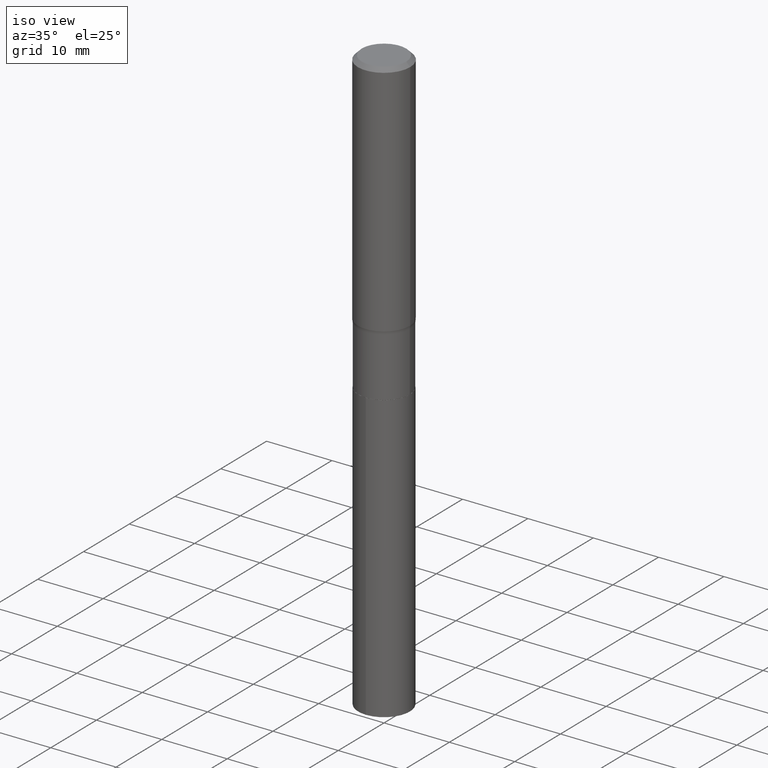
[diagram: clean part render]
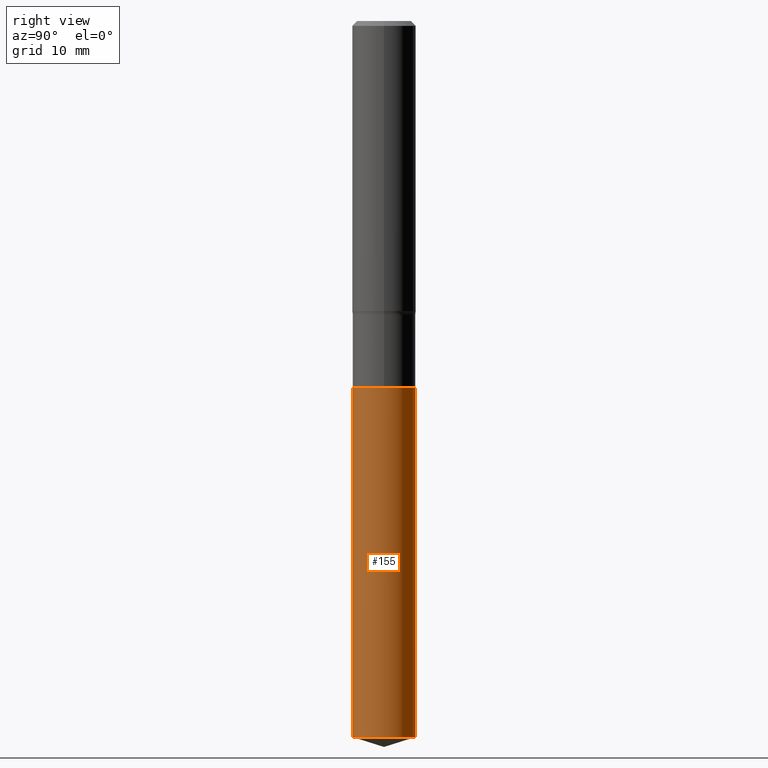
[diagram: tour spotlight — one face highlighted and labeled with its STEP entity id]
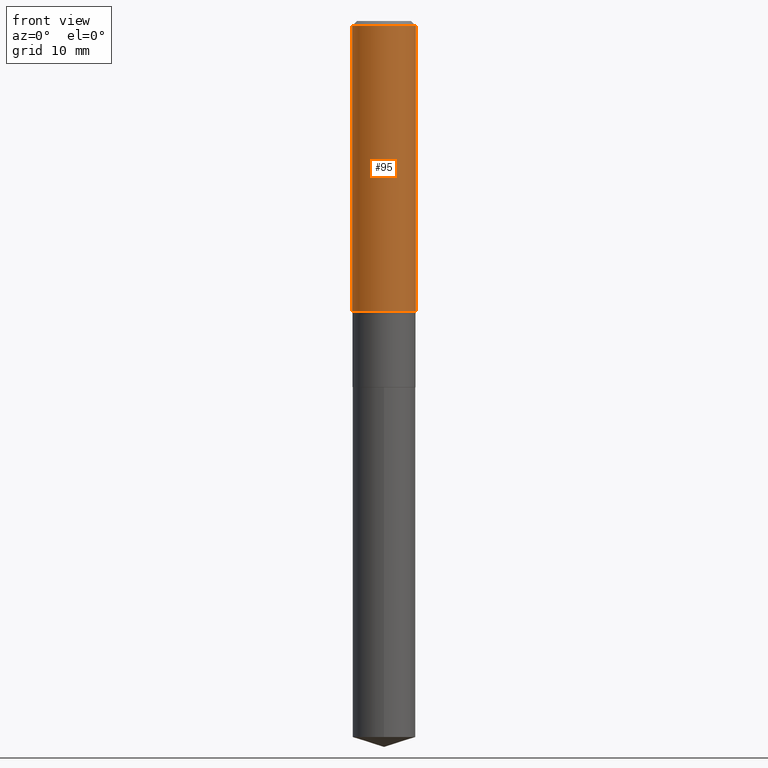
[diagram: tour spotlight — one face highlighted and labeled with its STEP entity id]
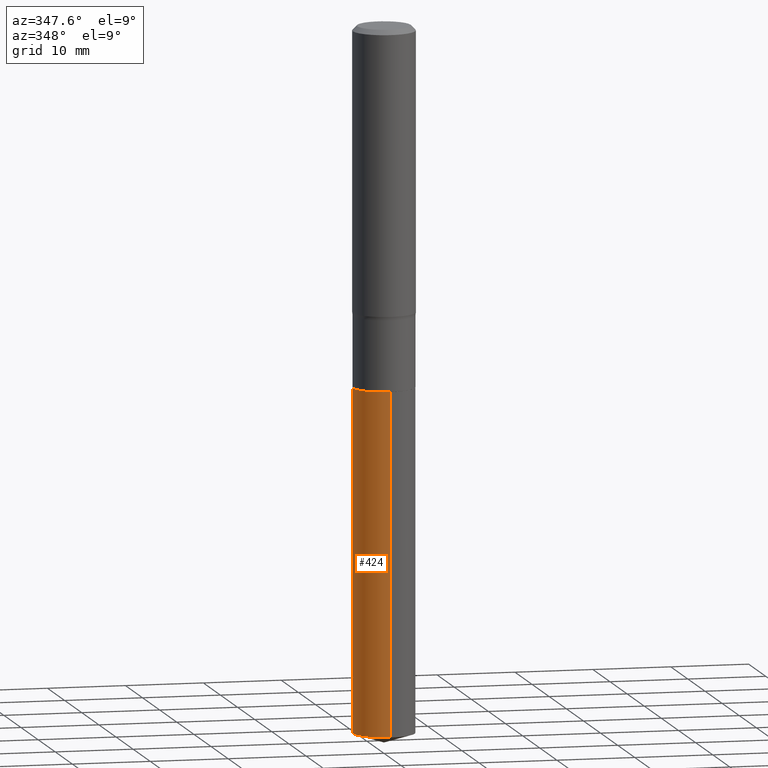
[diagram: tour spotlight — one face highlighted and labeled with its STEP entity id]
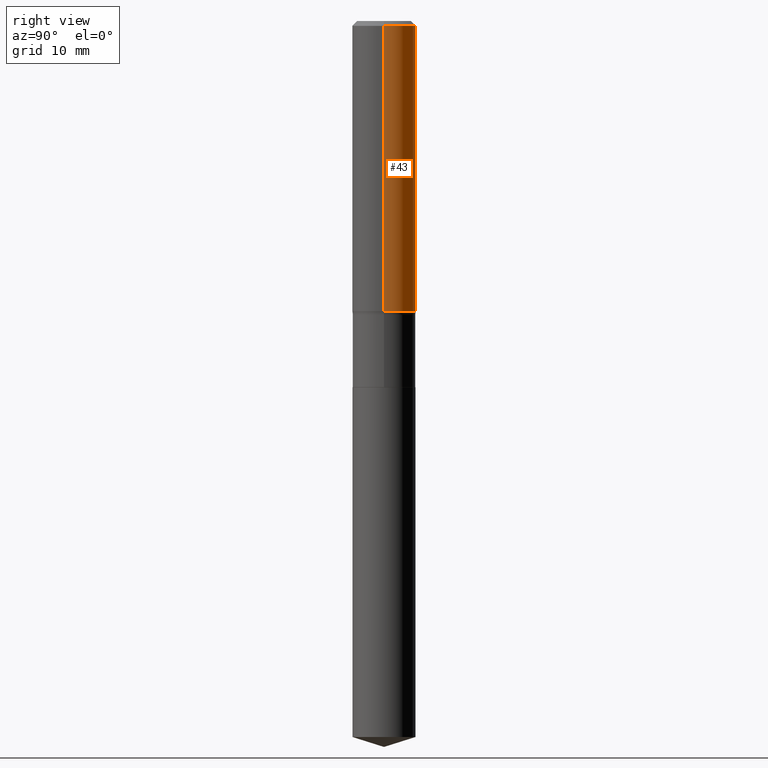
[diagram: tour spotlight — one face highlighted and labeled with its STEP entity id]
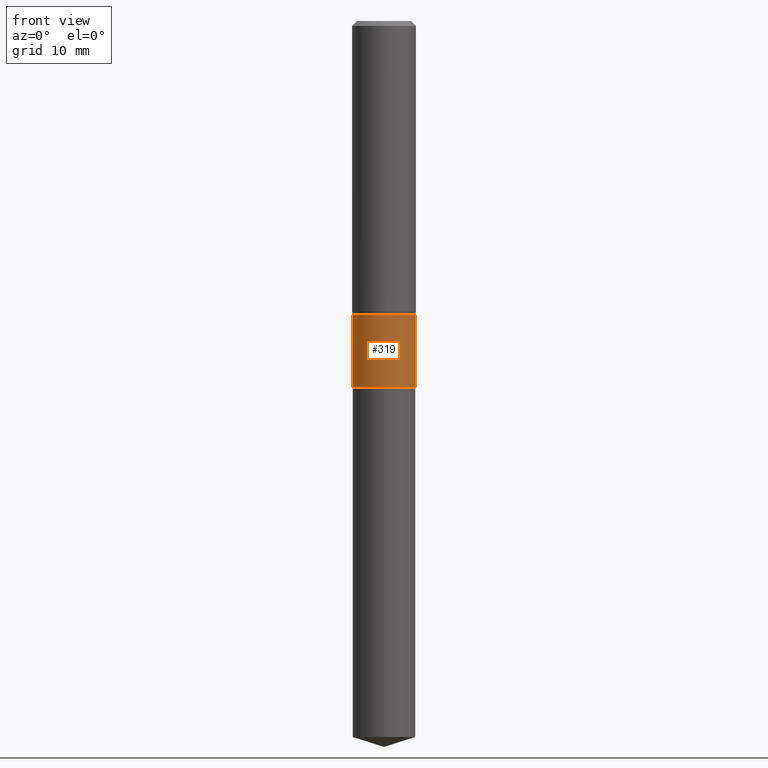
[diagram: tour spotlight — one face highlighted and labeled with its STEP entity id]
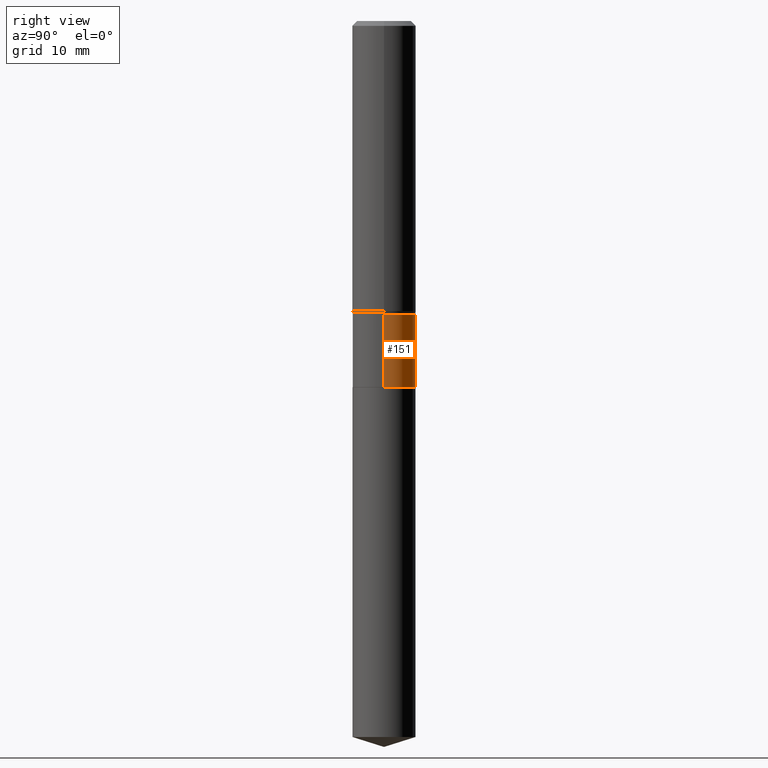
[diagram: tour spotlight — one face highlighted and labeled with its STEP entity id]
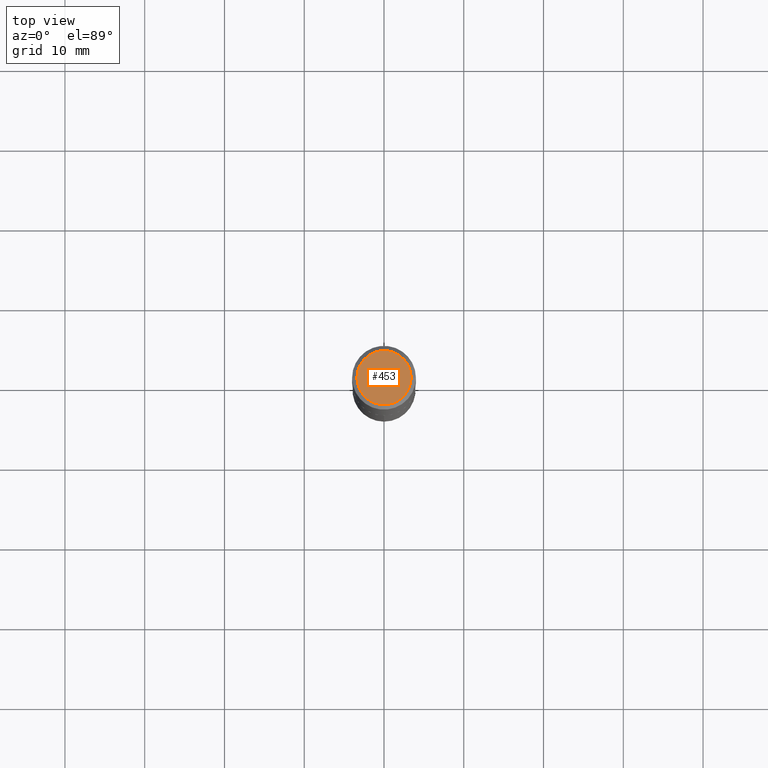
[diagram: tour spotlight — one face highlighted and labeled with its STEP entity id]
A machine part: a face-by-face anatomy tour. The part has 17 B-rep faces; the first image is the clean iso view, then the 7 largest visible faces are spotlighted one at a time (largest first), each with its STEP entity span.

Face 1 — right view, entity #155. In plain terms, the highlighted cylindrical surface (edge-blend (fillet) strip) has radius 3.9497 mm, axis along (-0, 0, 1).
Definition (entity closure, byte-faithful):
#6 = DIRECTION ( 'NONE',  ( -2.445501115440306015E-29, 3.491435070150814715E-15, 1.000000000000000000 ) ) ;
#18 = EDGE_CURVE ( 'NONE', #226, #250, #66, .T. ) ;
#30 = FACE_OUTER_BOUND ( 'NONE', #248, .T. ) ;
#47 = CARTESIAN_POINT ( 'NONE',  ( -1.085850696380127494E-15, -0.1555000000000122673, -3.533671038329317504 ) ) ;
#65 = EDGE_CURVE ( 'NONE', #243, #471, #270, .T. ) ;
#66 = LINE ( 'NONE', #288, #377 ) ;
#86 = AXIS2_PLACEMENT_3D ( 'NONE', #425, #6, #126 ) ;
#99 = AXIS2_PLACEMENT_3D ( 'NONE', #229, #158, #184 ) ;
#126 = DIRECTION ( 'NONE',  ( -6.982962677686265133E-15, -1.000000000000000000, 3.513630860018345064E-15 ) ) ;
#137 = ORIENTED_EDGE ( 'NONE', *, *, #65, .F. ) ;
#152 = CYLINDRICAL_SURFACE ( 'NONE', #99, 0.1554999999999999993 ) ;
#155 = ADVANCED_FACE ( 'NONE', ( #30 ), #152, .T. ) ;
#158 = DIRECTION ( 'NONE',  ( -2.445501115440306015E-29, 3.491435070150814715E-15, 1.000000000000000000 ) ) ;
#184 = DIRECTION ( 'NONE',  ( -6.982962677686265133E-15, -1.000000000000000000, 3.513630860018345064E-15 ) ) ;
#198 = CARTESIAN_POINT ( 'NONE',  ( 1.104893954107041573E-15, 0.1554999999999876203, -3.533671038329318836 ) ) ;
#201 = DIRECTION ( 'NONE',  ( -6.982962677686265133E-15, -1.000000000000000000, 3.513630860018345064E-15 ) ) ;
#213 = ORIENTED_EDGE ( 'NONE', *, *, #336, .F. ) ;
#217 = DIRECTION ( 'NONE',  ( -2.445501115440305735E-29, 3.491435070150814715E-15, 1.000000000000000000 ) ) ;
#226 = VERTEX_POINT ( 'NONE', #198 ) ;
#227 = VECTOR ( 'NONE', #350, 39.37007874015748143 ) ;
#229 = CARTESIAN_POINT ( 'NONE',  ( 4.419206679657160853E-29, -6.309455927423449056E-15, -1.807100000000000151 ) ) ;
#236 = DIRECTION ( 'NONE',  ( -2.445501115440306015E-29, 3.491435070150814715E-15, 1.000000000000000000 ) ) ;
#237 = CARTESIAN_POINT ( 'NONE',  ( 4.419206679657160853E-29, -6.309455927423449056E-15, -1.807100000000000151 ) ) ;
#243 = VERTEX_POINT ( 'NONE', #47 ) ;
#248 = EDGE_LOOP ( 'NONE', ( #282, #474, #213, #137 ) ) ;
#250 = VERTEX_POINT ( 'NONE', #305 ) ;
#270 = LINE ( 'NONE', #418, #227 ) ;
#282 = ORIENTED_EDGE ( 'NONE', *, *, #341, .T. ) ;
#288 = CARTESIAN_POINT ( 'NONE',  ( 1.104893954106999566E-15, 0.1554999999999936711, -1.807100000000000817 ) ) ;
#305 = CARTESIAN_POINT ( 'NONE',  ( 1.104893954107042165E-15, 0.1554999999999936711, -1.807100000000000817 ) ) ;
#336 = EDGE_CURVE ( 'NONE', #471, #250, #363, .T. ) ;
#341 = EDGE_CURVE ( 'NONE', #243, #226, #422, .T. ) ;
#350 = DIRECTION ( 'NONE',  ( -2.445501115440305735E-29, 3.491435070150814715E-15, 1.000000000000000000 ) ) ;
#363 = CIRCLE ( 'NONE', #438, 0.1554999999999999993 ) ;
#377 = VECTOR ( 'NONE', #217, 39.37007874015748143 ) ;
#418 = CARTESIAN_POINT ( 'NONE',  ( -1.085850696380170092E-15, -0.1555000000000062998, -1.807099999999999707 ) ) ;
#422 = CIRCLE ( 'NONE', #86, 0.1554999999999999993 ) ;
#425 = CARTESIAN_POINT ( 'NONE',  ( 8.641538079778433865E-29, -1.233766660175313429E-14, -3.533671038329317948 ) ) ;
#438 = AXIS2_PLACEMENT_3D ( 'NONE', #237, #236, #201 ) ;
#471 = VERTEX_POINT ( 'NONE', #473 ) ;
#473 = CARTESIAN_POINT ( 'NONE',  ( -1.085850696380170092E-15, -0.1555000000000062998, -1.807099999999999707 ) ) ;
#474 = ORIENTED_EDGE ( 'NONE', *, *, #18, .T. ) ;

Face 2 — front view, entity #95. In plain terms, the highlighted cylindrical surface (edge-blend (fillet) strip) has radius 4.0005 mm, axis along (-0, 0, 1).
Definition (entity closure, byte-faithful):
#5 = EDGE_CURVE ( 'NONE', #63, #260, #127, .T. ) ;
#28 = DIRECTION ( 'NONE',  ( 1.000000000000000000, -6.982962677686268288E-15, 0.000000000000000000 ) ) ;
#33 = FACE_OUTER_BOUND ( 'NONE', #490, .T. ) ;
#58 = EDGE_CURVE ( 'NONE', #260, #408, #292, .T. ) ;
#63 = VERTEX_POINT ( 'NONE', #268 ) ;
#81 = CARTESIAN_POINT ( 'NONE',  ( 0.000000000000000000, 0.000000000000000000, 0.000000000000000000 ) ) ;
#95 = ADVANCED_FACE ( 'NONE', ( #33 ), #187, .T. ) ;
#102 = ORIENTED_EDGE ( 'NONE', *, *, #58, .T. ) ;
#110 = CARTESIAN_POINT ( 'NONE',  ( 3.501544684315228678E-29, -4.999277803704066262E-15, -1.431850071225214682 ) ) ;
#117 = VERTEX_POINT ( 'NONE', #263 ) ;
#127 = CIRCLE ( 'NONE', #291, 0.1575000000000001399 ) ;
#136 = EDGE_CURVE ( 'NONE', #117, #408, #326, .T. ) ;
#154 = CARTESIAN_POINT ( 'NONE',  ( 5.777420054612421104E-31, -8.248624663016984002E-17, -0.02362500000000014588 ) ) ;
#164 = EDGE_CURVE ( 'NONE', #63, #117, #293, .T. ) ;
#187 = CYLINDRICAL_SURFACE ( 'NONE', #421, 0.1575000000000000566 ) ;
#256 = ORIENTED_EDGE ( 'NONE', *, *, #136, .F. ) ;
#260 = VERTEX_POINT ( 'NONE', #420 ) ;
#263 = CARTESIAN_POINT ( 'NONE',  ( -0.1575000000000000011, -1.421777216344959831E-15, -0.02362500000000014588 ) ) ;
#265 = ORIENTED_EDGE ( 'NONE', *, *, #164, .F. ) ;
#268 = CARTESIAN_POINT ( 'NONE',  ( -0.1575000000000001399, -3.880172994881907080E-15, -1.431850071225214682 ) ) ;
#291 = AXIS2_PLACEMENT_3D ( 'NONE', #110, #479, #28 ) ;
#292 = LINE ( 'NONE', #369, #461 ) ;
#293 = LINE ( 'NONE', #295, #342 ) ;
#295 = CARTESIAN_POINT ( 'NONE',  ( -0.1575000000000000566, 1.119104808822158195E-15, -7.747322767151479787E-30 ) ) ;
#326 = CIRCLE ( 'NONE', #428, 0.1575000000000000011 ) ;
#334 = DIRECTION ( 'NONE',  ( -2.445468806185136877E-29, 3.491481338843145188E-15, 1.000000000000000000 ) ) ;
#337 = DIRECTION ( 'NONE',  ( -2.445468806185136597E-29, 3.491481338843145583E-15, 1.000000000000000000 ) ) ;
#342 = VECTOR ( 'NONE', #448, 39.37007874015748143 ) ;
#369 = CARTESIAN_POINT ( 'NONE',  ( 0.1575000000000000566, -1.099816621735587480E-15, 7.679978421878602237E-30 ) ) ;
#389 = CARTESIAN_POINT ( 'NONE',  ( 0.1575000000000000011, -1.182302868365756679E-15, -0.02362500000000014588 ) ) ;
#406 = DIRECTION ( 'NONE',  ( 1.000000000000000000, -6.982962677686267499E-15, 4.876176775795936353E-29 ) ) ;
#408 = VERTEX_POINT ( 'NONE', #389 ) ;
#419 = DIRECTION ( 'NONE',  ( 1.000000000000000000, -6.982962677686265922E-15, 0.000000000000000000 ) ) ;
#420 = CARTESIAN_POINT ( 'NONE',  ( 0.1575000000000001399, -6.099094425439654531E-15, -1.431850071225214682 ) ) ;
#421 = AXIS2_PLACEMENT_3D ( 'NONE', #81, #486, #406 ) ;
#428 = AXIS2_PLACEMENT_3D ( 'NONE', #154, #337, #419 ) ;
#448 = DIRECTION ( 'NONE',  ( -2.445468806185136877E-29, 3.491481338843145188E-15, 1.000000000000000000 ) ) ;
#461 = VECTOR ( 'NONE', #334, 39.37007874015748143 ) ;
#472 = ORIENTED_EDGE ( 'NONE', *, *, #5, .T. ) ;
#479 = DIRECTION ( 'NONE',  ( -2.445468806185136597E-29, 3.491481338843145583E-15, 1.000000000000000000 ) ) ;
#486 = DIRECTION ( 'NONE',  ( -2.445468806185136597E-29, 3.491481338843145583E-15, 1.000000000000000000 ) ) ;
#490 = EDGE_LOOP ( 'NONE', ( #265, #472, #102, #256 ) ) ;

Face 3 — auxiliary view, entity #424. In plain terms, the highlighted cylindrical surface (edge-blend (fillet) strip) has radius 3.9497 mm, axis along (-0, 0, 1).
Definition (entity closure, byte-faithful):
#8 = AXIS2_PLACEMENT_3D ( 'NONE', #112, #372, #257 ) ;
#16 = ORIENTED_EDGE ( 'NONE', *, *, #169, .F. ) ;
#18 = EDGE_CURVE ( 'NONE', #226, #250, #66, .T. ) ;
#47 = CARTESIAN_POINT ( 'NONE',  ( -1.085850696380127494E-15, -0.1555000000000122673, -3.533671038329317504 ) ) ;
#65 = EDGE_CURVE ( 'NONE', #243, #471, #270, .T. ) ;
#66 = LINE ( 'NONE', #288, #377 ) ;
#71 = ORIENTED_EDGE ( 'NONE', *, *, #18, .F. ) ;
#82 = EDGE_CURVE ( 'NONE', #226, #243, #90, .T. ) ;
#90 = CIRCLE ( 'NONE', #443, 0.1554999999999999993 ) ;
#97 = DIRECTION ( 'NONE',  ( -6.982962677686265133E-15, -1.000000000000000000, 3.513630860018345064E-15 ) ) ;
#105 = EDGE_LOOP ( 'NONE', ( #71, #168, #352, #16 ) ) ;
#112 = CARTESIAN_POINT ( 'NONE',  ( 4.419206679657160853E-29, -6.309455927423449056E-15, -1.807100000000000151 ) ) ;
#163 = CIRCLE ( 'NONE', #8, 0.1554999999999999993 ) ;
#168 = ORIENTED_EDGE ( 'NONE', *, *, #82, .T. ) ;
#169 = EDGE_CURVE ( 'NONE', #250, #471, #163, .T. ) ;
#196 = AXIS2_PLACEMENT_3D ( 'NONE', #214, #433, #97 ) ;
#198 = CARTESIAN_POINT ( 'NONE',  ( 1.104893954107041573E-15, 0.1554999999999876203, -3.533671038329318836 ) ) ;
#208 = FACE_OUTER_BOUND ( 'NONE', #105, .T. ) ;
#214 = CARTESIAN_POINT ( 'NONE',  ( 4.419206679657160853E-29, -6.309455927423449056E-15, -1.807100000000000151 ) ) ;
#217 = DIRECTION ( 'NONE',  ( -2.445501115440305735E-29, 3.491435070150814715E-15, 1.000000000000000000 ) ) ;
#225 = DIRECTION ( 'NONE',  ( -2.445501115440306015E-29, 3.491435070150814715E-15, 1.000000000000000000 ) ) ;
#226 = VERTEX_POINT ( 'NONE', #198 ) ;
#227 = VECTOR ( 'NONE', #350, 39.37007874015748143 ) ;
#243 = VERTEX_POINT ( 'NONE', #47 ) ;
#250 = VERTEX_POINT ( 'NONE', #305 ) ;
#257 = DIRECTION ( 'NONE',  ( -6.982962677686265133E-15, -1.000000000000000000, 3.513630860018345064E-15 ) ) ;
#270 = LINE ( 'NONE', #418, #227 ) ;
#288 = CARTESIAN_POINT ( 'NONE',  ( 1.104893954106999566E-15, 0.1554999999999936711, -1.807100000000000817 ) ) ;
#302 = CARTESIAN_POINT ( 'NONE',  ( 8.641538079778433865E-29, -1.233766660175313429E-14, -3.533671038329317948 ) ) ;
#305 = CARTESIAN_POINT ( 'NONE',  ( 1.104893954107042165E-15, 0.1554999999999936711, -1.807100000000000817 ) ) ;
#350 = DIRECTION ( 'NONE',  ( -2.445501115440305735E-29, 3.491435070150814715E-15, 1.000000000000000000 ) ) ;
#352 = ORIENTED_EDGE ( 'NONE', *, *, #65, .T. ) ;
#372 = DIRECTION ( 'NONE',  ( -2.445501115440306015E-29, 3.491435070150814715E-15, 1.000000000000000000 ) ) ;
#377 = VECTOR ( 'NONE', #217, 39.37007874015748143 ) ;
#418 = CARTESIAN_POINT ( 'NONE',  ( -1.085850696380170092E-15, -0.1555000000000062998, -1.807099999999999707 ) ) ;
#424 = ADVANCED_FACE ( 'NONE', ( #208 ), #437, .T. ) ;
#433 = DIRECTION ( 'NONE',  ( -2.445501115440306015E-29, 3.491435070150814715E-15, 1.000000000000000000 ) ) ;
#437 = CYLINDRICAL_SURFACE ( 'NONE', #196, 0.1554999999999999993 ) ;
#443 = AXIS2_PLACEMENT_3D ( 'NONE', #302, #225, #481 ) ;
#471 = VERTEX_POINT ( 'NONE', #473 ) ;
#473 = CARTESIAN_POINT ( 'NONE',  ( -1.085850696380170092E-15, -0.1555000000000062998, -1.807099999999999707 ) ) ;
#481 = DIRECTION ( 'NONE',  ( -6.982962677686265133E-15, -1.000000000000000000, 3.513630860018345064E-15 ) ) ;

Face 4 — right view, entity #43. In plain terms, the highlighted cylindrical surface (edge-blend (fillet) strip) has radius 4.0005 mm, axis along (-0, 0, 1).
Definition (entity closure, byte-faithful):
#21 = ORIENTED_EDGE ( 'NONE', *, *, #58, .F. ) ;
#31 = DIRECTION ( 'NONE',  ( 1.000000000000000000, -6.982962677686268288E-15, 0.000000000000000000 ) ) ;
#43 = ADVANCED_FACE ( 'NONE', ( #68 ), #220, .T. ) ;
#48 = EDGE_CURVE ( 'NONE', #260, #63, #362, .T. ) ;
#58 = EDGE_CURVE ( 'NONE', #260, #408, #292, .T. ) ;
#63 = VERTEX_POINT ( 'NONE', #268 ) ;
#68 = FACE_OUTER_BOUND ( 'NONE', #172, .T. ) ;
#79 = ORIENTED_EDGE ( 'NONE', *, *, #164, .T. ) ;
#92 = AXIS2_PLACEMENT_3D ( 'NONE', #173, #357, #441 ) ;
#114 = DIRECTION ( 'NONE',  ( -2.445468806185136597E-29, 3.491481338843145583E-15, 1.000000000000000000 ) ) ;
#117 = VERTEX_POINT ( 'NONE', #263 ) ;
#147 = CARTESIAN_POINT ( 'NONE',  ( 3.501544684315228678E-29, -4.999277803704066262E-15, -1.431850071225214682 ) ) ;
#159 = CIRCLE ( 'NONE', #92, 0.1575000000000000011 ) ;
#164 = EDGE_CURVE ( 'NONE', #63, #117, #293, .T. ) ;
#172 = EDGE_LOOP ( 'NONE', ( #277, #79, #488, #21 ) ) ;
#173 = CARTESIAN_POINT ( 'NONE',  ( 5.777420054612421104E-31, -8.248624663016984002E-17, -0.02362500000000014588 ) ) ;
#182 = CARTESIAN_POINT ( 'NONE',  ( 0.000000000000000000, 0.000000000000000000, 0.000000000000000000 ) ) ;
#220 = CYLINDRICAL_SURFACE ( 'NONE', #393, 0.1575000000000000566 ) ;
#260 = VERTEX_POINT ( 'NONE', #420 ) ;
#263 = CARTESIAN_POINT ( 'NONE',  ( -0.1575000000000000011, -1.421777216344959831E-15, -0.02362500000000014588 ) ) ;
#268 = CARTESIAN_POINT ( 'NONE',  ( -0.1575000000000001399, -3.880172994881907080E-15, -1.431850071225214682 ) ) ;
#277 = ORIENTED_EDGE ( 'NONE', *, *, #48, .T. ) ;
#292 = LINE ( 'NONE', #369, #461 ) ;
#293 = LINE ( 'NONE', #295, #342 ) ;
#295 = CARTESIAN_POINT ( 'NONE',  ( -0.1575000000000000566, 1.119104808822158195E-15, -7.747322767151479787E-30 ) ) ;
#334 = DIRECTION ( 'NONE',  ( -2.445468806185136877E-29, 3.491481338843145188E-15, 1.000000000000000000 ) ) ;
#342 = VECTOR ( 'NONE', #448, 39.37007874015748143 ) ;
#355 = AXIS2_PLACEMENT_3D ( 'NONE', #147, #114, #31 ) ;
#357 = DIRECTION ( 'NONE',  ( -2.445468806185136597E-29, 3.491481338843145583E-15, 1.000000000000000000 ) ) ;
#362 = CIRCLE ( 'NONE', #355, 0.1575000000000001399 ) ;
#366 = DIRECTION ( 'NONE',  ( 1.000000000000000000, -6.982962677686267499E-15, 4.876176775795936353E-29 ) ) ;
#369 = CARTESIAN_POINT ( 'NONE',  ( 0.1575000000000000566, -1.099816621735587480E-15, 7.679978421878602237E-30 ) ) ;
#389 = CARTESIAN_POINT ( 'NONE',  ( 0.1575000000000000011, -1.182302868365756679E-15, -0.02362500000000014588 ) ) ;
#393 = AXIS2_PLACEMENT_3D ( 'NONE', #182, #411, #366 ) ;
#407 = EDGE_CURVE ( 'NONE', #408, #117, #159, .T. ) ;
#408 = VERTEX_POINT ( 'NONE', #389 ) ;
#411 = DIRECTION ( 'NONE',  ( -2.445468806185136597E-29, 3.491481338843145583E-15, 1.000000000000000000 ) ) ;
#420 = CARTESIAN_POINT ( 'NONE',  ( 0.1575000000000001399, -6.099094425439654531E-15, -1.431850071225214682 ) ) ;
#441 = DIRECTION ( 'NONE',  ( 1.000000000000000000, -6.982962677686265922E-15, 0.000000000000000000 ) ) ;
#448 = DIRECTION ( 'NONE',  ( -2.445468806185136877E-29, 3.491481338843145188E-15, 1.000000000000000000 ) ) ;
#461 = VECTOR ( 'NONE', #334, 39.37007874015748143 ) ;
#488 = ORIENTED_EDGE ( 'NONE', *, *, #407, .F. ) ;

Face 5 — front view, entity #319. In plain terms, the highlighted cylindrical surface (edge-blend (fillet) strip) has radius 3.9497 mm, axis along (-0, 0, 1).
Definition (entity closure, byte-faithful):
#3 = CIRCLE ( 'NONE', #179, 0.1554999999999999438 ) ;
#15 = CARTESIAN_POINT ( 'NONE',  ( -0.1554999999999999993, -4.579237665529685647E-15, -1.806600000000000428 ) ) ;
#26 = ORIENTED_EDGE ( 'NONE', *, *, #354, .T. ) ;
#35 = ORIENTED_EDGE ( 'NONE', *, *, #219, .F. ) ;
#51 = CARTESIAN_POINT ( 'NONE',  ( -0.1554999999999999438, 1.104893954106955390E-15, -7.648944065346376022E-30 ) ) ;
#60 = ORIENTED_EDGE ( 'NONE', *, *, #113, .F. ) ;
#70 = CARTESIAN_POINT ( 'NONE',  ( -0.1554999999999999438, -4.579237665529685647E-15, -1.449399999999999800 ) ) ;
#74 = EDGE_CURVE ( 'NONE', #388, #312, #325, .T. ) ;
#76 = VECTOR ( 'NONE', #349, 39.37007874015748143 ) ;
#89 = DIRECTION ( 'NONE',  ( -2.445468806185136597E-29, 3.491481338843145583E-15, 1.000000000000000000 ) ) ;
#93 = CARTESIAN_POINT ( 'NONE',  ( 0.1554999999999999438, -6.146403748899468790E-15, -1.449399999999999800 ) ) ;
#113 = EDGE_CURVE ( 'NONE', #133, #312, #3, .T. ) ;
#116 = CARTESIAN_POINT ( 'NONE',  ( 0.1554999999999999438, -1.085850696380214268E-15, 7.582454886362678420E-30 ) ) ;
#120 = CARTESIAN_POINT ( 'NONE',  ( 3.544462487684736704E-29, -5.060553052519254127E-15, -1.449399999999999800 ) ) ;
#129 = LINE ( 'NONE', #51, #76 ) ;
#133 = VERTEX_POINT ( 'NONE', #70 ) ;
#146 = DIRECTION ( 'NONE',  ( 1.000000000000000000, -6.982962677686269077E-15, 0.000000000000000000 ) ) ;
#176 = ORIENTED_EDGE ( 'NONE', *, *, #74, .T. ) ;
#179 = AXIS2_PLACEMENT_3D ( 'NONE', #120, #374, #146 ) ;
#197 = DIRECTION ( 'NONE',  ( -2.445468806185136877E-29, 3.491481338843145188E-15, 1.000000000000000000 ) ) ;
#212 = CARTESIAN_POINT ( 'NONE',  ( 0.1554999999999999993, -7.393560883134242215E-15, -1.806600000000000428 ) ) ;
#219 = EDGE_CURVE ( 'NONE', #468, #133, #129, .T. ) ;
#238 = DIRECTION ( 'NONE',  ( 1.000000000000000000, -6.982962677686266711E-15, 0.000000000000000000 ) ) ;
#247 = VECTOR ( 'NONE', #197, 39.37007874015748143 ) ;
#276 = CIRCLE ( 'NONE', #394, 0.1554999999999999993 ) ;
#309 = DIRECTION ( 'NONE',  ( -2.445468806185136597E-29, 3.491481338843145583E-15, 1.000000000000000000 ) ) ;
#312 = VERTEX_POINT ( 'NONE', #93 ) ;
#319 = ADVANCED_FACE ( 'NONE', ( #463 ), #467, .T. ) ;
#325 = LINE ( 'NONE', #116, #247 ) ;
#348 = CARTESIAN_POINT ( 'NONE',  ( 4.417983945254068051E-29, -6.307710186754027552E-15, -1.806600000000000428 ) ) ;
#349 = DIRECTION ( 'NONE',  ( -2.445468806185136877E-29, 3.491481338843145188E-15, 1.000000000000000000 ) ) ;
#354 = EDGE_CURVE ( 'NONE', #468, #388, #276, .T. ) ;
#364 = EDGE_LOOP ( 'NONE', ( #35, #26, #176, #60 ) ) ;
#374 = DIRECTION ( 'NONE',  ( -2.445468806185136597E-29, 3.491481338843145583E-15, 1.000000000000000000 ) ) ;
#379 = DIRECTION ( 'NONE',  ( 1.000000000000000000, -6.982962677686268288E-15, 4.876176775795936353E-29 ) ) ;
#388 = VERTEX_POINT ( 'NONE', #212 ) ;
#394 = AXIS2_PLACEMENT_3D ( 'NONE', #348, #309, #238 ) ;
#455 = AXIS2_PLACEMENT_3D ( 'NONE', #458, #89, #379 ) ;
#458 = CARTESIAN_POINT ( 'NONE',  ( 0.000000000000000000, 0.000000000000000000, 0.000000000000000000 ) ) ;
#463 = FACE_OUTER_BOUND ( 'NONE', #364, .T. ) ;
#467 = CYLINDRICAL_SURFACE ( 'NONE', #455, 0.1554999999999999438 ) ;
#468 = VERTEX_POINT ( 'NONE', #15 ) ;

Face 6 — right view, entity #151. In plain terms, the highlighted cylindrical surface (edge-blend (fillet) strip) has radius 3.9497 mm, axis along (-0, 0, 1).
Definition (entity closure, byte-faithful):
#2 = CARTESIAN_POINT ( 'NONE',  ( 0.000000000000000000, 0.000000000000000000, 0.000000000000000000 ) ) ;
#15 = CARTESIAN_POINT ( 'NONE',  ( -0.1554999999999999993, -4.579237665529685647E-15, -1.806600000000000428 ) ) ;
#23 = CIRCLE ( 'NONE', #106, 0.1554999999999999438 ) ;
#39 = DIRECTION ( 'NONE',  ( 1.000000000000000000, -6.982962677686269077E-15, 0.000000000000000000 ) ) ;
#44 = CARTESIAN_POINT ( 'NONE',  ( 4.417983945254068051E-29, -6.307710186754027552E-15, -1.806600000000000428 ) ) ;
#51 = CARTESIAN_POINT ( 'NONE',  ( -0.1554999999999999438, 1.104893954106955390E-15, -7.648944065346376022E-30 ) ) ;
#70 = CARTESIAN_POINT ( 'NONE',  ( -0.1554999999999999438, -4.579237665529685647E-15, -1.449399999999999800 ) ) ;
#74 = EDGE_CURVE ( 'NONE', #388, #312, #325, .T. ) ;
#76 = VECTOR ( 'NONE', #349, 39.37007874015748143 ) ;
#93 = CARTESIAN_POINT ( 'NONE',  ( 0.1554999999999999438, -6.146403748899468790E-15, -1.449399999999999800 ) ) ;
#103 = EDGE_CURVE ( 'NONE', #312, #133, #23, .T. ) ;
#106 = AXIS2_PLACEMENT_3D ( 'NONE', #190, #193, #39 ) ;
#116 = CARTESIAN_POINT ( 'NONE',  ( 0.1554999999999999438, -1.085850696380214268E-15, 7.582454886362678420E-30 ) ) ;
#129 = LINE ( 'NONE', #51, #76 ) ;
#133 = VERTEX_POINT ( 'NONE', #70 ) ;
#143 = CIRCLE ( 'NONE', #413, 0.1554999999999999993 ) ;
#151 = ADVANCED_FACE ( 'NONE', ( #195 ), #445, .T. ) ;
#188 = EDGE_LOOP ( 'NONE', ( #206, #215, #399, #279 ) ) ;
#190 = CARTESIAN_POINT ( 'NONE',  ( 3.544462487684736704E-29, -5.060553052519254127E-15, -1.449399999999999800 ) ) ;
#193 = DIRECTION ( 'NONE',  ( -2.445468806185136597E-29, 3.491481338843145583E-15, 1.000000000000000000 ) ) ;
#195 = FACE_OUTER_BOUND ( 'NONE', #188, .T. ) ;
#197 = DIRECTION ( 'NONE',  ( -2.445468806185136877E-29, 3.491481338843145188E-15, 1.000000000000000000 ) ) ;
#206 = ORIENTED_EDGE ( 'NONE', *, *, #252, .T. ) ;
#212 = CARTESIAN_POINT ( 'NONE',  ( 0.1554999999999999993, -7.393560883134242215E-15, -1.806600000000000428 ) ) ;
#215 = ORIENTED_EDGE ( 'NONE', *, *, #219, .T. ) ;
#219 = EDGE_CURVE ( 'NONE', #468, #133, #129, .T. ) ;
#222 = DIRECTION ( 'NONE',  ( -2.445468806185136597E-29, 3.491481338843145583E-15, 1.000000000000000000 ) ) ;
#247 = VECTOR ( 'NONE', #197, 39.37007874015748143 ) ;
#252 = EDGE_CURVE ( 'NONE', #388, #468, #143, .T. ) ;
#279 = ORIENTED_EDGE ( 'NONE', *, *, #74, .F. ) ;
#304 = DIRECTION ( 'NONE',  ( 1.000000000000000000, -6.982962677686266711E-15, 0.000000000000000000 ) ) ;
#312 = VERTEX_POINT ( 'NONE', #93 ) ;
#325 = LINE ( 'NONE', #116, #247 ) ;
#349 = DIRECTION ( 'NONE',  ( -2.445468806185136877E-29, 3.491481338843145188E-15, 1.000000000000000000 ) ) ;
#368 = DIRECTION ( 'NONE',  ( 1.000000000000000000, -6.982962677686268288E-15, 4.876176775795936353E-29 ) ) ;
#388 = VERTEX_POINT ( 'NONE', #212 ) ;
#399 = ORIENTED_EDGE ( 'NONE', *, *, #103, .F. ) ;
#413 = AXIS2_PLACEMENT_3D ( 'NONE', #44, #426, #304 ) ;
#426 = DIRECTION ( 'NONE',  ( -2.445468806185136597E-29, 3.491481338843145583E-15, 1.000000000000000000 ) ) ;
#445 = CYLINDRICAL_SURFACE ( 'NONE', #469, 0.1554999999999999438 ) ;
#468 = VERTEX_POINT ( 'NONE', #15 ) ;
#469 = AXIS2_PLACEMENT_3D ( 'NONE', #2, #222, #368 ) ;

Face 7 — top view, entity #453. In plain terms, the highlighted planar face has unit normal (0, -0, -1).
Definition (entity closure, byte-faithful):
#11 = DIRECTION ( 'NONE',  ( 1.000000000000000000, -6.982962677686266711E-15, 4.876170806578254279E-29 ) ) ;
#46 = DIRECTION ( 'NONE',  ( -2.445468806185136597E-29, 3.491481338843145583E-15, 1.000000000000000000 ) ) ;
#55 = CARTESIAN_POINT ( 'NONE',  ( 0.1338749999999999940, -1.040731925365424925E-15, 4.101342130351393887E-18 ) ) ;
#94 = EDGE_LOOP ( 'NONE', ( #211, #483 ) ) ;
#100 = CIRCLE ( 'NONE', #343, 0.1338749999999999940 ) ;
#141 = DIRECTION ( 'NONE',  ( 2.438088387897960049E-29, -3.491481338843145188E-15, -1.000000000000000000 ) ) ;
#162 = CARTESIAN_POINT ( 'NONE',  ( -1.002970424325033577E-46, 1.431975951230896486E-32, 4.101342130344485961E-18 ) ) ;
#170 = PLANE ( 'NONE',  #210 ) ;
#210 = AXIS2_PLACEMENT_3D ( 'NONE', #216, #141, #359 ) ;
#211 = ORIENTED_EDGE ( 'NONE', *, *, #460, .T. ) ;
#216 = CARTESIAN_POINT ( 'NONE',  ( -5.014852121625167883E-47, 7.159879756154482429E-33, 2.050671065172242981E-18 ) ) ;
#239 = EDGE_CURVE ( 'NONE', #432, #353, #266, .T. ) ;
#251 = DIRECTION ( 'NONE',  ( -2.445468806185136597E-29, 3.491481338843145583E-15, 1.000000000000000000 ) ) ;
#266 = CIRCLE ( 'NONE', #347, 0.1338749999999999940 ) ;
#314 = CARTESIAN_POINT ( 'NONE',  ( -1.002970424325033577E-46, 1.431975951230896486E-32, 4.101342130344485961E-18 ) ) ;
#318 = FACE_OUTER_BOUND ( 'NONE', #94, .T. ) ;
#321 = DIRECTION ( 'NONE',  ( 1.000000000000000000, -6.982962677686266711E-15, 4.876170806578254279E-29 ) ) ;
#343 = AXIS2_PLACEMENT_3D ( 'NONE', #314, #251, #321 ) ;
#347 = AXIS2_PLACEMENT_3D ( 'NONE', #162, #46, #11 ) ;
#353 = VERTEX_POINT ( 'NONE', #382 ) ;
#359 = DIRECTION ( 'NONE',  ( -1.000000000000000000, 6.982962677686265922E-15, -4.876176775795935793E-29 ) ) ;
#382 = CARTESIAN_POINT ( 'NONE',  ( -0.1338749999999999940, 9.760872517903331886E-16, 4.101342130337804525E-18 ) ) ;
#432 = VERTEX_POINT ( 'NONE', #55 ) ;
#453 = ADVANCED_FACE ( 'NONE', ( #318 ), #170, .F. ) ;
#460 = EDGE_CURVE ( 'NONE', #353, #432, #100, .T. ) ;
#483 = ORIENTED_EDGE ( 'NONE', *, *, #239, .T. ) ;